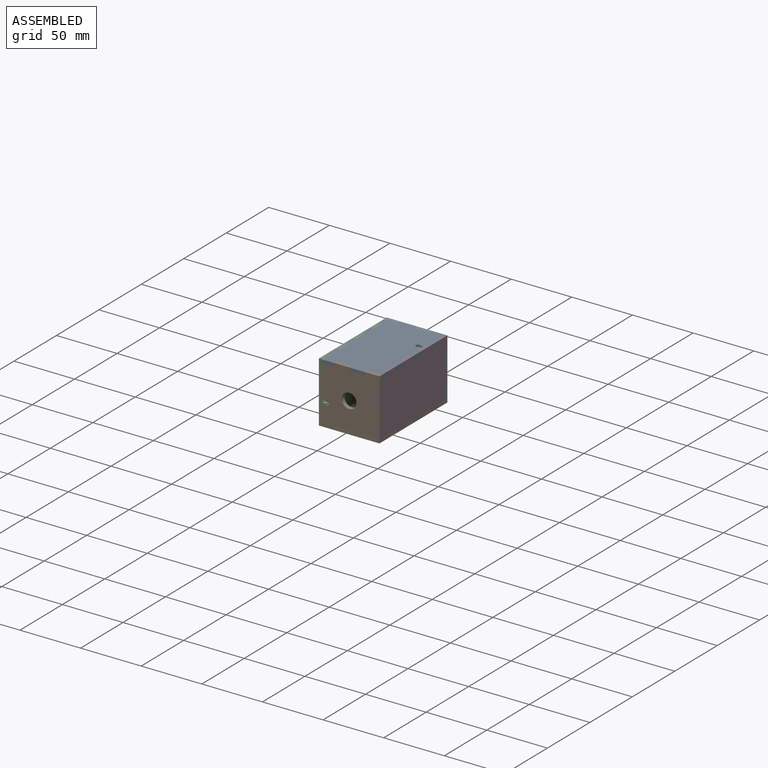
[diagram: assembled view]
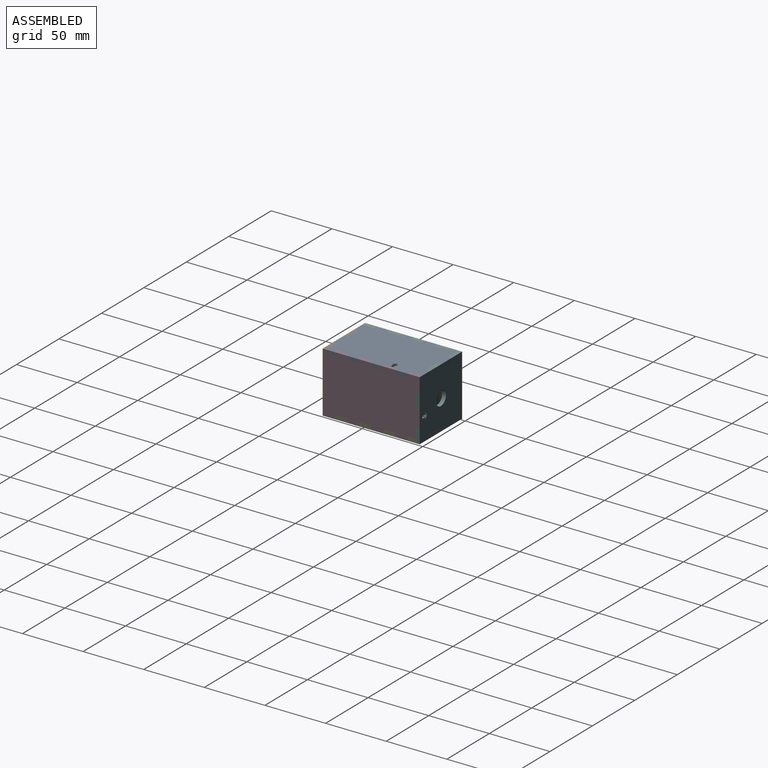
[diagram: assembled view, second angle]
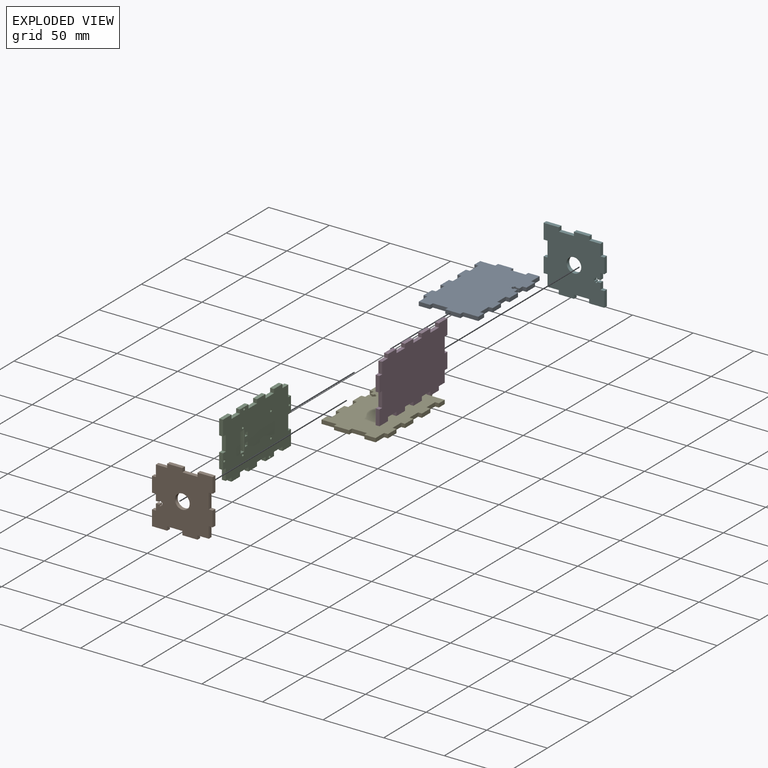
[diagram: exploded view]
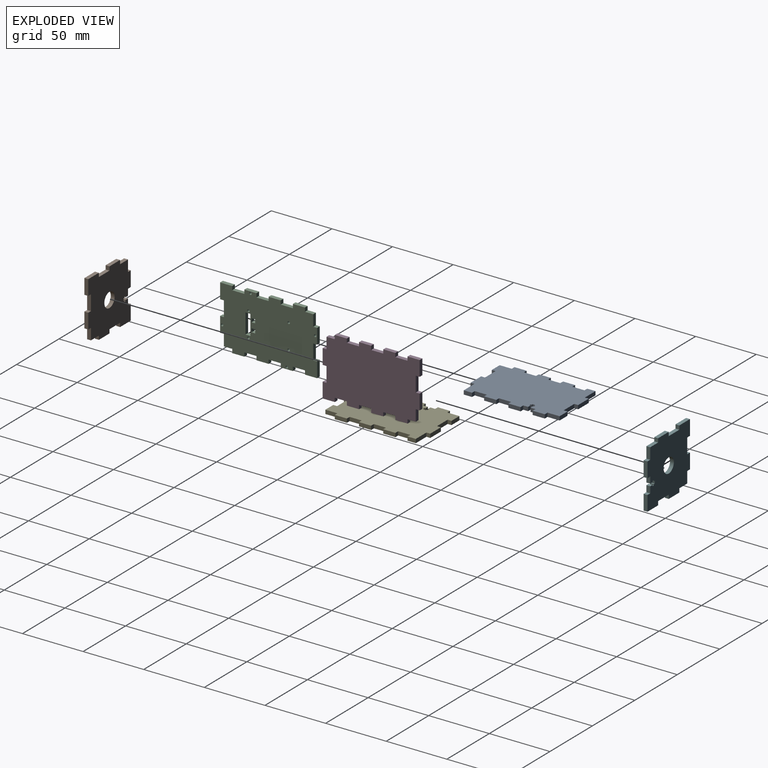
[diagram: exploded view, second angle]
ASSEMBLY  parts=6 mates=15
PART A: 58 faces, bbox 50x80x3.2 mm
  f0: plane 4x3.18mm, normal (1,0,0), area 12.7mm2, adj f1,f2,f35,f51
  f1: plane 80x50mm, normal (0,0,1), area 3573.9mm2, adj f0,f3,f4,f5,f6,f7,f8,f9
  f2: plane 80x50mm, normal (0,0,-1), area 3573.9mm2, adj f0,f3,f4,f5,f6,f7,f8,f9
  f3: plane 12.5x3.18mm, normal (0,1,0), area 39.7mm2, adj f1,f2,f4,f46
  f4: plane 6.83x3.18mm, normal (-1,0,0), area 21.7mm2, adj f1,f2,f3,f5
  f5: plane 3.18x3.18mm, normal (0,-1,0), area 10.1mm2, adj f1,f2,f4,f6
  f6: plane 10x3.18mm, normal (-1,0,0), area 31.7mm2, adj f1,f2,f5,f7
  f7: plane 3.18x3.18mm, normal (0,1,0), area 10.1mm2, adj f1,f2,f6,f8
  f8: plane 10x3.18mm, normal (-1,0,0), area 31.8mm2, adj f1,f2,f7,f9
  f9: plane 3.18x3.18mm, normal (0,-1,0), area 10.1mm2, adj f1,f2,f8,f10
  f10: plane 10x3.18mm, normal (-1,0,0), area 31.8mm2, adj f1,f2,f9,f11
  f11: plane 3.18x3.18mm, normal (0,1,0), area 10.1mm2, adj f1,f2,f10,f12
  f12: plane 10x3.18mm, normal (-1,0,0), area 31.7mm2, adj f1,f2,f11,f13
  f13: plane 3.18x3.18mm, normal (0,-1,0), area 10.1mm2, adj f1,f2,f12,f14
  f14: plane 10x3.18mm, normal (-1,0,0), area 31.8mm2, adj f1,f2,f13,f15
  f15: plane 3.18x3.18mm, normal (0,1,0), area 10.1mm2, adj f1,f2,f14,f16
  f16: plane 10x3.18mm, normal (-1,0,0), area 31.7mm2, adj f1,f2,f15,f17
  f17: plane 3.18x3.18mm, normal (0,-1,0), area 10.1mm2, adj f1,f2,f16,f18
  f18: plane 10x3.18mm, normal (-1,0,0), area 31.8mm2, adj f1,f2,f17,f19
  f19: plane 9.33x3.18mm, normal (0,-1,0), area 29.6mm2, adj f1,f2,f18,f20
  f20: plane 3.18x3.18mm, normal (1,0,0), area 10.1mm2, adj f1,f2,f19,f21
  f21: plane 12.5x3.18mm, normal (0,-1,0), area 39.7mm2, adj f1,f2,f20,f22
  f22: plane 3.18x3.18mm, normal (-1,0,0), area 10.1mm2, adj f1,f2,f21,f23
  f23: plane 12.5x3.18mm, normal (0,-1,0), area 39.7mm2, adj f1,f2,f22,f24
  f24: plane 3.18x3.18mm, normal (1,0,0), area 10.1mm2, adj f1,f2,f23,f25
  f25: plane 12.5x3.18mm, normal (0,-1,0), area 39.7mm2, adj f1,f2,f24,f26
  f26: plane 6.83x3.18mm, normal (1,0,0), area 21.7mm2, adj f1,f2,f25,f27
  f27: plane 3.18x3.18mm, normal (0,1,0), area 10.1mm2, adj f1,f2,f26,f28
  f28: plane 10x3.18mm, normal (1,0,0), area 31.7mm2, adj f1,f2,f27,f29
  f29: plane 3.18x3.18mm, normal (0,-1,0), area 10.1mm2, adj f1,f2,f28,f30
  f30: plane 10x3.18mm, normal (1,0,0), area 31.8mm2, adj f1,f2,f29,f31
  f31: plane 3.18x3.18mm, normal (0,1,0), area 10.1mm2, adj f1,f2,f30,f32
  f32: plane 10x3.18mm, normal (1,0,0), area 31.7mm2, adj f1,f2,f31,f33
  f33: plane 3.18x3.18mm, normal (0,-1,0), area 10.1mm2, adj f1,f2,f32,f34
  f34: plane 10x3.18mm, normal (1,0,0), area 31.8mm2, adj f1,f2,f33,f35
  f35: plane 3.18x3.18mm, normal (0,1,0), area 10.1mm2, adj f0,f1,f2,f34
  f36: plane 4x3.18mm, normal (1,0,0), area 12.7mm2, adj f1,f2,f37,f52
  f37: plane 3.18x3.18mm, normal (0,-1,0), area 10.1mm2, adj f1,f2,f36,f38
  f38: plane 10x3.18mm, normal (1,0,0), area 31.7mm2, adj f1,f2,f37,f39
  f39: plane 3.18x3.18mm, normal (0,1,0), area 10.1mm2, adj f1,f2,f38,f40
  f40: plane 10x3.18mm, normal (1,0,0), area 31.8mm2, adj f1,f2,f39,f41
  f41: plane 9.33x3.18mm, normal (0,1,0), area 29.6mm2, adj f1,f2,f40,f42
  f42: plane 3.18x3.18mm, normal (-1,0,0), area 10.1mm2, adj f1,f2,f41,f43
  f43: plane 12.5x3.18mm, normal (0,1,0), area 39.7mm2, adj f1,f2,f42,f44
  f44: plane 3.18x3.18mm, normal (1,0,0), area 10.1mm2, adj f1,f2,f43,f45
  f45: plane 12.5x3.18mm, normal (0,1,0), area 39.7mm2, adj f1,f2,f44,f46
  f46: plane 3.18x3.18mm, normal (-1,0,0), area 10.1mm2, adj f1,f2,f3,f45
  f47: plane 3.18x1mm, normal (0,1,0), area 3.2mm2, adj f1,f2,f48,f57
  f48: plane 3.18x0.9mm, normal (1,0,0), area 2.9mm2, adj f1,f2,f47,f49
  f49: plane 3.18x1.5mm, normal (0,1,0), area 4.8mm2, adj f1,f2,f48,f50
  f50: plane 3.18x0.9mm, normal (-1,0,0), area 2.9mm2, adj f1,f2,f49,f51
  f51: plane 3.18x2.83mm, normal (0,1,0), area 9mm2, adj f0,f1,f2,f50
  f52: plane 3.18x2.83mm, normal (0,-1,0), area 9mm2, adj f1,f2,f36,f53
  f53: plane 3.18x0.9mm, normal (-1,0,0), area 2.9mm2, adj f1,f2,f52,f54
  f54: plane 3.18x1.5mm, normal (0,-1,0), area 4.8mm2, adj f1,f2,f53,f55
  f55: plane 3.18x0.9mm, normal (1,0,0), area 2.9mm2, adj f1,f2,f54,f56
  f56: plane 3.18x1mm, normal (0,-1,0), area 3.2mm2, adj f1,f2,f55,f57
  f57: plane 3.18x2mm, normal (1,0,0), area 6.3mm2, adj f1,f2,f47,f56
PART B: 43 faces, bbox 50x50x3.2 mm
  f0: plane 5.25x3.18mm, normal (0,-1,0), area 16.7mm2, adj f1,f11,f30,f33
  f1: plane 50x50mm, normal (0,0,-1), area 2074.3mm2, adj f0,f2,f3,f4,f5,f6,f7,f8
  f2: plane 3.18x3.18mm, normal (0,-1,0), area 10.1mm2, adj f1,f3,f29,f30
  f3: plane 12.5x3.18mm, normal (-1,0,0), area 39.7mm2, adj f1,f2,f4,f30
  f4: plane 3.18x3.18mm, normal (0,1,0), area 10.1mm2, adj f1,f3,f5,f30
  f5: plane 12.5x3.18mm, normal (-1,0,0), area 39.7mm2, adj f1,f4,f6,f30
  f6: plane 3.18x3.18mm, normal (0,-1,0), area 10.1mm2, adj f1,f5,f7,f30
  f7: plane 9.33x3.18mm, normal (-1,0,0), area 29.6mm2, adj f1,f6,f8,f30
  f8: plane 9.33x3.18mm, normal (0,-1,0), area 29.6mm2, adj f1,f7,f9,f30
  f9: plane 3.18x3.18mm, normal (-1,0,0), area 10.1mm2, adj f1,f8,f10,f30
  f10: plane 12.5x3.18mm, normal (0,-1,0), area 39.7mm2, adj f1,f9,f11,f30
  f11: plane 3.18x3.18mm, normal (1,0,0), area 10.1mm2, adj f0,f1,f10,f30
  f12: plane 5.25x3.18mm, normal (0,-1,0), area 16.7mm2, adj f1,f13,f30,f34
  f13: plane 3.18x3.18mm, normal (-1,0,0), area 10.1mm2, adj f1,f12,f14,f30
  f14: plane 12.5x3.18mm, normal (0,-1,0), area 39.7mm2, adj f1,f13,f15,f30
  f15: plane 12.5x3.18mm, normal (1,0,0), area 39.7mm2, adj f1,f14,f16,f30
  f16: plane 3.18x3.18mm, normal (0,1,0), area 10.1mm2, adj f1,f15,f17,f30
  f17: plane 12.5x3.18mm, normal (1,0,0), area 39.7mm2, adj f1,f16,f18,f30
  f18: plane 3.18x3.18mm, normal (0,-1,0), area 10.1mm2, adj f1,f17,f19,f30
  f19: plane 12.5x3.18mm, normal (1,0,0), area 39.7mm2, adj f1,f18,f20,f30
  f20: plane 3.18x3.18mm, normal (0,1,0), area 10.1mm2, adj f1,f19,f21,f30
  f21: plane 9.33x3.18mm, normal (1,0,0), area 29.6mm2, adj f1,f20,f22,f30
  f22: plane 9.33x3.18mm, normal (0,1,0), area 29.6mm2, adj f1,f21,f23,f30
  f23: plane 3.18x3.18mm, normal (1,0,0), area 10.1mm2, adj f1,f22,f24,f30
  f24: plane 12.5x3.18mm, normal (0,1,0), area 39.7mm2, adj f1,f23,f25,f30
  f25: plane 3.18x3.18mm, normal (-1,0,0), area 10.1mm2, adj f1,f24,f26,f30
  f26: plane 12.5x3.18mm, normal (0,1,0), area 39.7mm2, adj f1,f25,f27,f30
  f27: plane 3.18x3.18mm, normal (1,0,0), area 10.1mm2, adj f1,f26,f28,f30
  f28: plane 12.5x3.18mm, normal (0,1,0), area 39.7mm2, adj f1,f27,f29,f30
  f29: plane 12.5x3.18mm, normal (-1,0,0), area 39.7mm2, adj f1,f2,f28,f30
  f30: plane 50x50mm, normal (0,0,1), area 2074.3mm2, adj f0,f2,f3,f4,f5,f6,f7,f8
  f31: cylinder r=6.05mm len=12.1mm, axis (0,0,-1), area 120.7mm2, adj f1,f30
  f32: plane 3.18x0.9mm, normal (0,1,0), area 2.9mm2, adj f1,f30,f33,f42
  f33: plane 3.18x2.83mm, normal (1,0,0), area 9mm2, adj f0,f1,f30,f32
  f34: plane 3.18x2.83mm, normal (-1,0,0), area 9mm2, adj f1,f12,f30,f35
  f35: plane 3.18x0.9mm, normal (0,1,0), area 2.9mm2, adj f1,f30,f34,f36
  f36: plane 3.18x1.5mm, normal (-1,0,0), area 4.8mm2, adj f1,f30,f35,f37
  f37: plane 3.18x0.9mm, normal (0,-1,0), area 2.9mm2, adj f1,f30,f36,f38
  f38: plane 3.18x1mm, normal (-1,0,0), area 3.2mm2, adj f1,f30,f37,f39
  f39: plane 3.18x2mm, normal (0,-1,0), area 6.3mm2, adj f1,f30,f38,f40
  f40: plane 3.18x1mm, normal (1,0,0), area 3.2mm2, adj f1,f30,f39,f41
  f41: plane 3.18x0.9mm, normal (0,-1,0), area 2.9mm2, adj f1,f30,f40,f42
  f42: plane 3.18x1.5mm, normal (1,0,0), area 4.8mm2, adj f1,f30,f32,f41
PART C: 66 faces, bbox 50x80x3.2 mm
  f0: plane 80x50mm, normal (0,0,1), area 3498.3mm2, adj f2,f3,f4,f5,f6,f7,f8,f9
  f1: plane 80x50mm, normal (0,0,-1), area 3498.3mm2, adj f2,f3,f4,f5,f6,f7,f8,f9
  f2: plane 3.18x3.18mm, normal (0,-1,0), area 10.1mm2, adj f0,f1,f3,f48
  f3: plane 10x3.18mm, normal (-1,0,0), area 31.7mm2, adj f0,f1,f2,f4
  f4: plane 3.18x3.18mm, normal (0,1,0), area 10.1mm2, adj f0,f1,f3,f5
  f5: plane 10x3.18mm, normal (-1,0,0), area 31.8mm2, adj f0,f1,f4,f6
  f6: plane 3.18x3.18mm, normal (0,-1,0), area 10.1mm2, adj f0,f1,f5,f7
  f7: plane 10x3.18mm, normal (-1,0,0), area 31.8mm2, adj f0,f1,f6,f8
  f8: plane 3.18x3.18mm, normal (0,1,0), area 10.1mm2, adj f0,f1,f7,f9
  f9: plane 10x3.18mm, normal (-1,0,0), area 31.8mm2, adj f0,f1,f8,f10
  f10: plane 3.18x3.18mm, normal (0,-1,0), area 10.1mm2, adj f0,f1,f9,f11
  f11: plane 10x3.18mm, normal (-1,0,0), area 31.8mm2, adj f0,f1,f10,f12
  f12: plane 3.18x3.18mm, normal (0,1,0), area 10.1mm2, adj f0,f1,f11,f13
  f13: plane 10x3.18mm, normal (-1,0,0), area 31.7mm2, adj f0,f1,f12,f14
  f14: plane 3.18x3.18mm, normal (0,-1,0), area 10.1mm2, adj f0,f1,f13,f15
  f15: plane 6.83x3.18mm, normal (-1,0,0), area 21.7mm2, adj f0,f1,f14,f16
  f16: plane 9.33x3.18mm, normal (0,-1,0), area 29.6mm2, adj f0,f1,f15,f17
  f17: plane 3.18x3.18mm, normal (-1,0,0), area 10.1mm2, adj f0,f1,f16,f18
  f18: plane 12.5x3.18mm, normal (0,-1,0), area 39.7mm2, adj f0,f1,f17,f19
  f19: plane 3.18x3.18mm, normal (1,0,0), area 10.1mm2, adj f0,f1,f18,f20
  f20: plane 12.5x3.18mm, normal (0,-1,0), area 39.7mm2, adj f0,f1,f19,f21
  f21: plane 3.18x3.18mm, normal (-1,0,0), area 10.1mm2, adj f0,f1,f20,f22
  f22: plane 12.5x3.18mm, normal (0,-1,0), area 39.7mm2, adj f0,f1,f21,f23
  f23: plane 10x3.18mm, normal (1,0,0), area 31.8mm2, adj f0,f1,f22,f24
  f24: plane 3.18x3.18mm, normal (0,1,0), area 10.1mm2, adj f0,f1,f23,f25
  f25: plane 10x3.18mm, normal (1,0,0), area 31.7mm2, adj f0,f1,f24,f26
  f26: plane 3.18x3.18mm, normal (0,-1,0), area 10.1mm2, adj f0,f1,f25,f27
  f27: plane 10x3.18mm, normal (1,0,0), area 31.8mm2, adj f0,f1,f26,f28
  f28: plane 3.18x3.18mm, normal (0,1,0), area 10.1mm2, adj f0,f1,f27,f29
  f29: plane 10x3.18mm, normal (1,0,0), area 31.8mm2, adj f0,f1,f28,f30
  f30: plane 3.18x3.18mm, normal (0,-1,0), area 10.1mm2, adj f0,f1,f29,f31
  f31: plane 10x3.18mm, normal (1,0,0), area 31.8mm2, adj f0,f1,f30,f32
  f32: plane 3.18x3.18mm, normal (0,1,0), area 10.1mm2, adj f0,f1,f31,f33
  f33: plane 10x3.18mm, normal (1,0,0), area 31.8mm2, adj f0,f1,f32,f34
  f34: plane 3.18x3.18mm, normal (0,-1,0), area 10.1mm2, adj f0,f1,f33,f35
  f35: plane 10x3.18mm, normal (1,0,0), area 31.7mm2, adj f0,f1,f34,f36
  f36: plane 3.18x3.18mm, normal (0,1,0), area 10.1mm2, adj f0,f1,f35,f37
  f37: plane 6.83x3.18mm, normal (1,0,0), area 21.7mm2, adj f0,f1,f36,f38
  f38: plane 9.33x3.18mm, normal (0,1,0), area 29.6mm2, adj f0,f1,f37,f39
  f39: plane 3.18x3.18mm, normal (1,0,0), area 10.1mm2, adj f0,f1,f38,f40
  f40: plane 12.5x3.18mm, normal (0,1,0), area 39.7mm2, adj f0,f1,f39,f41
  f41: plane 3.18x3.18mm, normal (-1,0,0), area 10.1mm2, adj f0,f1,f40,f42
  f42: plane 12.5x3.18mm, normal (0,1,0), area 39.7mm2, adj f0,f1,f41,f43
  f43: plane 3.18x3.18mm, normal (1,0,0), area 10.1mm2, adj f0,f1,f42,f44
  f44: plane 12.5x3.18mm, normal (0,1,0), area 39.7mm2, adj f0,f1,f43,f48
  f45: cylinder r=1mm len=3.18mm, axis (0,0,-1), area 19.9mm2, adj f0,f1
  f46: cylinder r=1mm len=3.18mm, axis (0,0,-1), area 19.9mm2, adj f0,f1
  f47: cylinder r=1mm len=3.18mm, axis (0,0,-1), area 19.9mm2, adj f0,f1
  f48: plane 10x3.18mm, normal (-1,0,0), area 31.8mm2, adj f0,f1,f2,f44
  f49: cylinder r=1mm len=3.18mm, axis (0,0,-1), area 19.9mm2, adj f0,f1
  f50: cylinder r=1mm len=3.18mm, axis (0,0,1), area 19.9mm2, adj f0,f1
  f51: plane 4x3.18mm, normal (-1,0,0), area 12.7mm2, adj f0,f1,f52,f54
  f52: plane 16.5x3.18mm, normal (0,-1,0), area 52.4mm2, adj f0,f1,f51,f53
  f53: plane 4x3.18mm, normal (1,0,0), area 12.7mm2, adj f0,f1,f52,f54
  f54: plane 16.5x3.18mm, normal (0,1,0), area 52.4mm2, adj f0,f1,f51,f53
  f55: cylinder r=1mm len=3.18mm, axis (0,0,1), area 19.9mm2, adj f0,f1
  f56: cylinder r=1mm len=3.18mm, axis (0,0,1), area 19.9mm2, adj f0,f1
  f57: cylinder r=1mm len=3.18mm, axis (0,0,1), area 19.9mm2, adj f0,f1
  f58: plane 3.18x3mm, normal (0,-1,0), area 9.5mm2, adj f0,f1,f59,f61
  f59: plane 3.18x3mm, normal (1,0,0), area 9.5mm2, adj f0,f1,f58,f60
  f60: plane 3.18x3mm, normal (0,1,0), area 9.5mm2, adj f0,f1,f59,f61
  f61: plane 3.18x3mm, normal (-1,0,0), area 9.5mm2, adj f0,f1,f58,f60
  f62: plane 3.18x3mm, normal (-1,0,0), area 9.5mm2, adj f0,f1,f63,f65
  f63: plane 3.18x3mm, normal (0,-1,0), area 9.5mm2, adj f0,f1,f62,f64
  f64: plane 3.18x3mm, normal (1,0,0), area 9.5mm2, adj f0,f1,f63,f65
  f65: plane 3.18x3mm, normal (0,1,0), area 9.5mm2, adj f0,f1,f62,f64
PART D: 46 faces, bbox 50x80x3.2 mm
  f0: plane 3.18x3.18mm, normal (-1,0,0), area 10.1mm2, adj f1,f43,f44,f45
  f1: plane 12.5x3.18mm, normal (0,1,0), area 39.7mm2, adj f0,f2,f44,f45
  f2: plane 3.18x3.18mm, normal (1,0,0), area 10.1mm2, adj f1,f3,f44,f45
  f3: plane 12.5x3.18mm, normal (0,1,0), area 39.7mm2, adj f2,f4,f44,f45
  f4: plane 3.18x3.18mm, normal (-1,0,0), area 10.1mm2, adj f3,f5,f44,f45
  f5: plane 9.33x3.18mm, normal (0,1,0), area 29.6mm2, adj f4,f6,f44,f45
  f6: plane 6.83x3.18mm, normal (-1,0,0), area 21.7mm2, adj f5,f7,f44,f45
  f7: plane 3.18x3.18mm, normal (0,1,0), area 10.1mm2, adj f6,f8,f44,f45
  f8: plane 10x3.18mm, normal (-1,0,0), area 31.7mm2, adj f7,f9,f44,f45
  f9: plane 3.18x3.18mm, normal (0,-1,0), area 10.1mm2, adj f8,f10,f44,f45
  f10: plane 10x3.18mm, normal (-1,0,0), area 31.8mm2, adj f9,f11,f44,f45
  f11: plane 3.18x3.18mm, normal (0,1,0), area 10.1mm2, adj f10,f12,f44,f45
  f12: plane 10x3.18mm, normal (-1,0,0), area 31.7mm2, adj f11,f13,f44,f45
  f13: plane 3.18x3.18mm, normal (0,-1,0), area 10.1mm2, adj f12,f14,f44,f45
  f14: plane 10x3.18mm, normal (-1,0,0), area 31.8mm2, adj f13,f15,f44,f45
  f15: plane 3.18x3.18mm, normal (0,1,0), area 10.1mm2, adj f14,f16,f44,f45
  f16: plane 10x3.18mm, normal (-1,0,0), area 31.8mm2, adj f15,f17,f44,f45
  f17: plane 3.18x3.18mm, normal (0,-1,0), area 10.1mm2, adj f16,f18,f44,f45
  f18: plane 10x3.18mm, normal (-1,0,0), area 31.7mm2, adj f17,f19,f44,f45
  f19: plane 3.18x3.18mm, normal (0,1,0), area 10.1mm2, adj f18,f20,f44,f45
  f20: plane 10x3.18mm, normal (-1,0,0), area 31.8mm2, adj f19,f21,f44,f45
  f21: plane 12.5x3.18mm, normal (0,-1,0), area 39.7mm2, adj f20,f22,f44,f45
  f22: plane 3.18x3.18mm, normal (1,0,0), area 10.1mm2, adj f21,f23,f44,f45
  f23: plane 12.5x3.18mm, normal (0,-1,0), area 39.7mm2, adj f22,f24,f44,f45
  f24: plane 3.18x3.18mm, normal (-1,0,0), area 10.1mm2, adj f23,f25,f44,f45
  f25: plane 12.5x3.18mm, normal (0,-1,0), area 39.7mm2, adj f24,f26,f44,f45
  f26: plane 3.18x3.18mm, normal (1,0,0), area 10.1mm2, adj f25,f27,f44,f45
  f27: plane 9.33x3.18mm, normal (0,-1,0), area 29.6mm2, adj f26,f28,f44,f45
  f28: plane 6.83x3.18mm, normal (1,0,0), area 21.7mm2, adj f27,f29,f44,f45
  f29: plane 3.18x3.18mm, normal (0,-1,0), area 10.1mm2, adj f28,f30,f44,f45
  f30: plane 10x3.18mm, normal (1,0,0), area 31.7mm2, adj f29,f31,f44,f45
  f31: plane 3.18x3.18mm, normal (0,1,0), area 10.1mm2, adj f30,f32,f44,f45
  f32: plane 10x3.18mm, normal (1,0,0), area 31.8mm2, adj f31,f33,f44,f45
  f33: plane 3.18x3.18mm, normal (0,-1,0), area 10.1mm2, adj f32,f34,f44,f45
  f34: plane 10x3.18mm, normal (1,0,0), area 31.8mm2, adj f33,f35,f44,f45
  f35: plane 3.18x3.18mm, normal (0,1,0), area 10.1mm2, adj f34,f36,f44,f45
  f36: plane 10x3.18mm, normal (1,0,0), area 31.8mm2, adj f35,f37,f44,f45
  f37: plane 3.18x3.18mm, normal (0,-1,0), area 10.1mm2, adj f36,f38,f44,f45
  f38: plane 10x3.18mm, normal (1,0,0), area 31.8mm2, adj f37,f39,f44,f45
  f39: plane 3.18x3.18mm, normal (0,1,0), area 10.1mm2, adj f38,f40,f44,f45
  f40: plane 10x3.18mm, normal (1,0,0), area 31.7mm2, adj f39,f41,f44,f45
  f41: plane 3.18x3.18mm, normal (0,-1,0), area 10.1mm2, adj f40,f42,f44,f45
  f42: plane 10x3.18mm, normal (1,0,0), area 31.8mm2, adj f41,f43,f44,f45
  f43: plane 12.5x3.18mm, normal (0,1,0), area 39.7mm2, adj f0,f42,f44,f45
  f44: plane 80x50mm, normal (0,0,1), area 3607.4mm2, adj f0,f1,f2,f3,f4,f5,f6,f7
  f45: plane 80x50mm, normal (0,0,-1), area 3607.4mm2, adj f0,f1,f2,f3,f4,f5,f6,f7
PART E: same geometry as A
PART F: same geometry as B
PLACE A t=(-78.22,-24.72,26.06)mm
PLACE B rot(axis=(0.58,0.58,-0.58),120deg) t=(-78.22,-61.54,4.24)mm
PLACE C rot(axis=(0.71,0,-0.71),180deg) t=(-100.05,-24.72,4.24)mm
PLACE D rot(axis=(0,-1,0),90deg) t=(-53.22,-24.72,4.24)mm
PLACE E rot(axis=(0,1,0),180deg) t=(-78.22,-24.72,-17.59)mm
PLACE F rot(axis=(-0.58,0.58,0.58),120deg) t=(-78.22,12.11,4.24)mm
MATE planar A.f8 <-> C.f0  axis (-1,0,0) through (-103.22,-9.72,27.65)mm
MATE planar B.f9 <-> C.f43  axis (0,0,1) through (-101.64,-63.13,16.74)mm
MATE planar D.f45 <-> E.f8  axis (1,0,0) through (-53.22,-24.72,4.24)mm
MATE planar B.f30 <-> C.f44  axis (0,-1,0) through (-78.1,-64.72,4.28)mm
MATE planar F.f23 <-> C.f21  axis (0,0,-1) through (-101.64,13.7,-8.26)mm
MATE planar F.f1 <-> C.f20  axis (0,-1,0) through (-100.05,12.11,10.49)mm
MATE planar E.f1 <-> F.f19  axis (0,0,-1) through (-78.15,-24.77,-20.76)mm
MATE planar E.f34 <-> C.f0  axis (-1,0,0) through (-103.22,-19.72,-19.18)mm
MATE planar D.f38 <-> A.f1  axis (0,0,1) through (-54.81,-9.72,29.24)mm
MATE planar C.f1 <-> F.f26  axis (1,0,0) through (-100.05,-24.72,4.24)mm
MATE planar C.f9 <-> A.f1  axis (0,0,1) through (-101.64,-19.72,29.24)mm
MATE planar E.f41 <-> F.f30  axis (0,1,0) through (-95.39,15.28,-19.18)mm
MATE planar D.f43 <-> F.f30  axis (0,1,0) through (-54.81,15.28,22.99)mm
MATE planar A.f45 <-> F.f30  axis (0,1,0) through (-84.47,15.28,27.65)mm
MATE planar B.f0 <-> C.f1  axis (-1,0,0) through (-100.05,-63.13,1.61)mm
